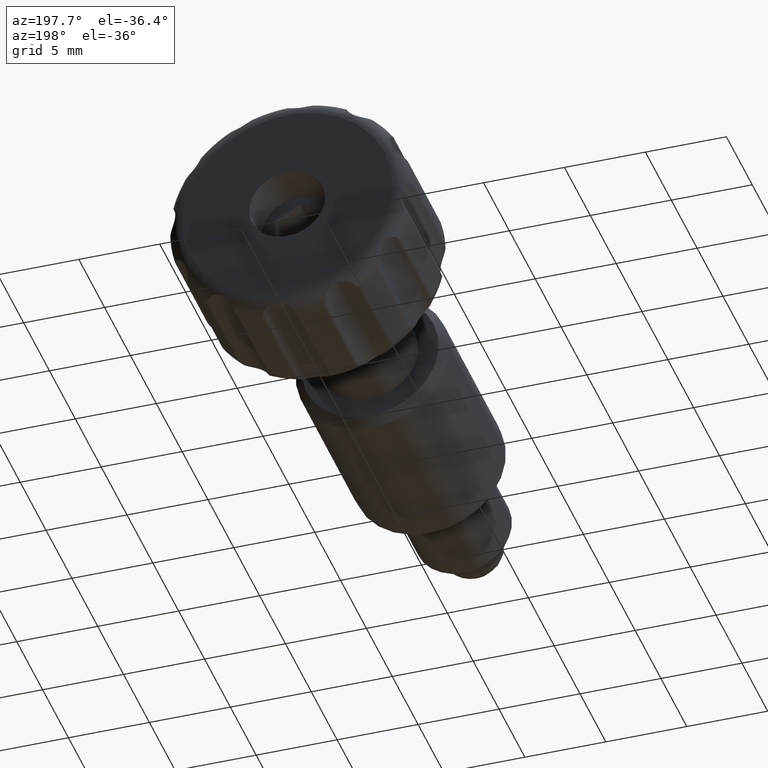
[diagram: clean part render]
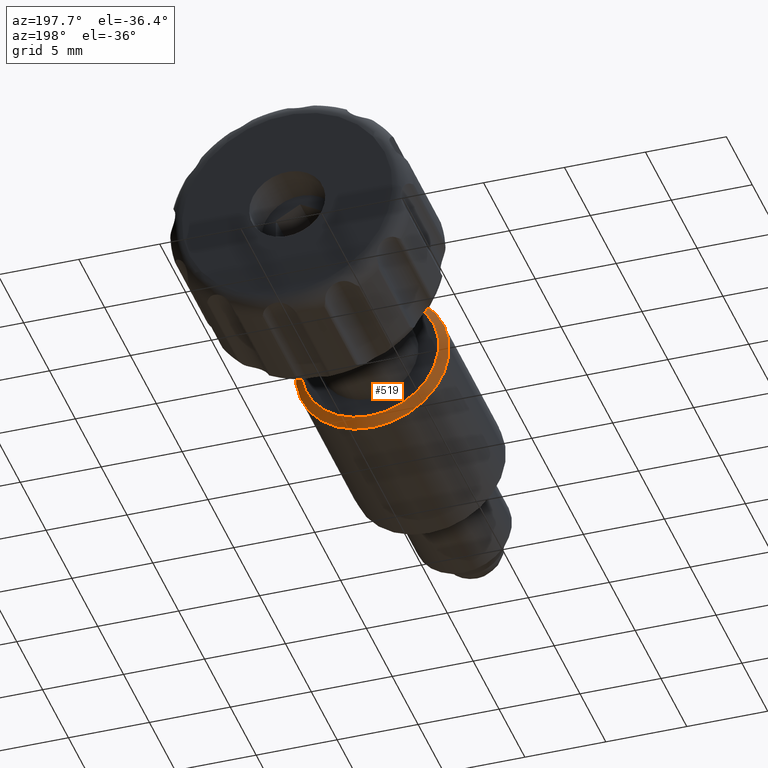
[diagram: same view with one face highlighted and labeled with its STEP entity id]
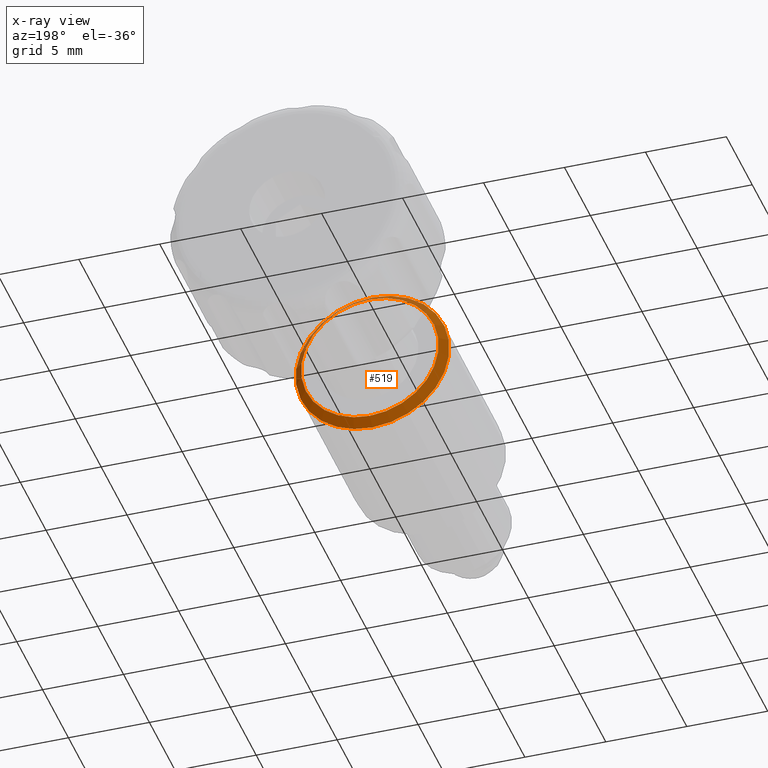
[diagram: x-ray of the same camera — body ghosted, the highlighted face saturated]
A machine part, auxiliary view. The second image highlights one B-rep face of the part: STEP entity #519.
The next image is the same camera in x-ray: the body ghosted, the highlighted face saturated — about 15% of this face is hidden behind the body in this view.
In plain terms, the highlighted conical surface has half-angle 45 deg.
Its self-contained STEP definition (entity closure, byte-faithful):
#91 = EDGE_CURVE ( 'NONE', #2603, #2603, #1050, .T. ) ;
#194 = DIRECTION ( 'NONE',  ( 1.110223024615719422E-16, 2.572937036057972714E-16, 1.000000000000000000 ) ) ;
#287 = AXIS2_PLACEMENT_3D ( 'NONE', #851, #1916, #432 ) ;
#297 = ORIENTED_EDGE ( 'NONE', *, *, #91, .F. ) ;
#406 = AXIS2_PLACEMENT_3D ( 'NONE', #1789, #841, #194 ) ;
#432 = DIRECTION ( 'NONE',  ( 1.110223024615719422E-16, 2.510783978387479878E-16, 1.000000000000000000 ) ) ;
#481 = EDGE_LOOP ( 'NONE', ( #297 ) ) ;
#519 = ADVANCED_FACE ( 'NONE', ( #663, #2262 ), #1143, .T. ) ;
#663 = FACE_BOUND ( 'NONE', #481, .T. ) ;
#775 = CARTESIAN_POINT ( 'NONE',  ( 8.715954348884979489E-17, -0.4999999999999992784, 4.750000000000007994 ) ) ;
#841 = DIRECTION ( 'NONE',  ( 2.242596216879639770E-16, 1.000000000000000000, 2.572937036057979123E-16 ) ) ;
#851 = CARTESIAN_POINT ( 'NONE',  ( -4.401963932036178211E-16, -0.5000000000000004441, 4.269581258504633756E-43 ) ) ;
#931 = CIRCLE ( 'NONE', #1646, 4.750000000000007994 ) ;
#970 = VERTEX_POINT ( 'NONE', #775 ) ;
#1050 = CIRCLE ( 'NONE', #406, 4.250000000000004441 ) ;
#1143 = CONICAL_SURFACE ( 'NONE', #287, 4.750000000000007994, 0.7853981633974500554 ) ;
#1478 = EDGE_CURVE ( 'NONE', #970, #970, #931, .T. ) ;
#1646 = AXIS2_PLACEMENT_3D ( 'NONE', #2452, #1832, #2544 ) ;
#1789 = CARTESIAN_POINT ( 'NONE',  ( 0.000000000000000000, 0.000000000000000000, 0.000000000000000000 ) ) ;
#1832 = DIRECTION ( 'NONE',  ( -2.242596216879639770E-16, -1.000000000000000000, -2.572937036057979123E-16 ) ) ;
#1916 = DIRECTION ( 'NONE',  ( -2.242596216879639770E-16, -1.000000000000000000, -2.572937036057979123E-16 ) ) ;
#1927 = ORIENTED_EDGE ( 'NONE', *, *, #1478, .F. ) ;
#2262 = FACE_OUTER_BOUND ( 'NONE', #2541, .T. ) ;
#2452 = CARTESIAN_POINT ( 'NONE',  ( -4.401963932036178211E-16, -0.5000000000000004441, 4.269581258504633756E-43 ) ) ;
#2541 = EDGE_LOOP ( 'NONE', ( #1927 ) ) ;
#2544 = DIRECTION ( 'NONE',  ( 1.110223024615719422E-16, 2.510783978387479878E-16, 1.000000000000000000 ) ) ;
#2588 = CARTESIAN_POINT ( 'NONE',  ( 4.718447854616812567E-16, 1.093498240324639574E-15, 4.250000000000004441 ) ) ;
#2603 = VERTEX_POINT ( 'NONE', #2588 ) ;